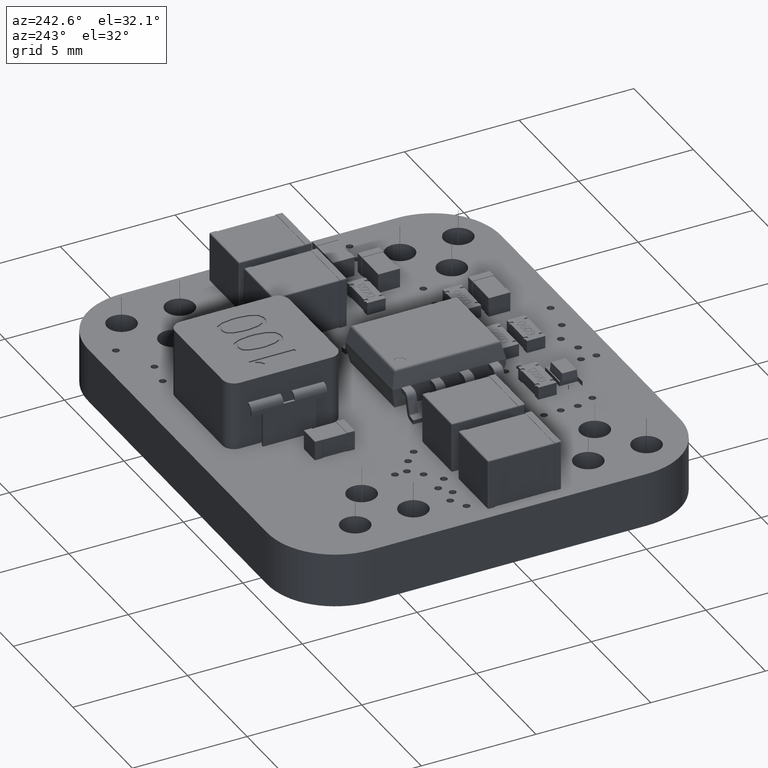
[diagram: clean part render]
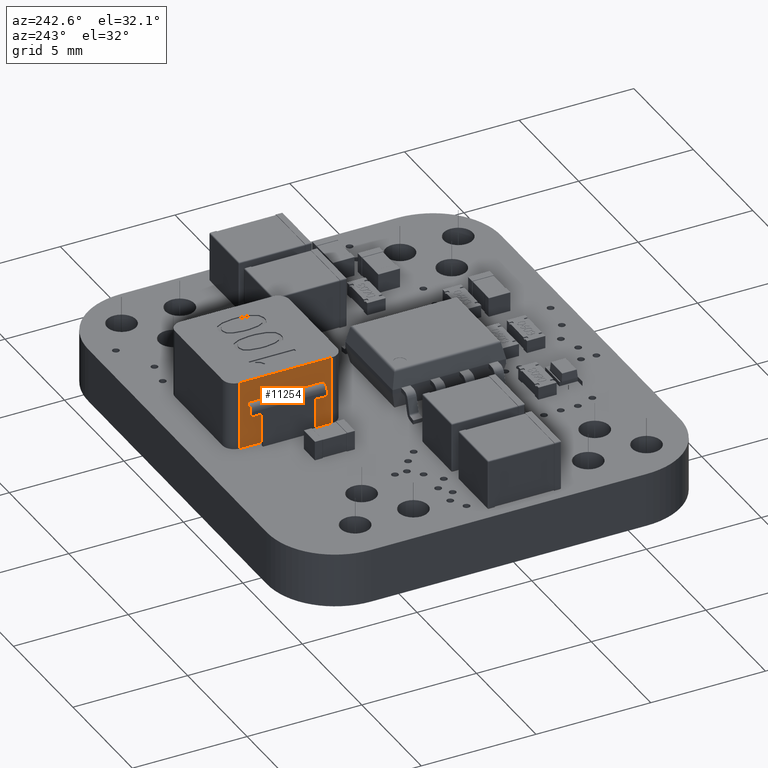
[diagram: same view with one face highlighted and labeled with its STEP entity id]
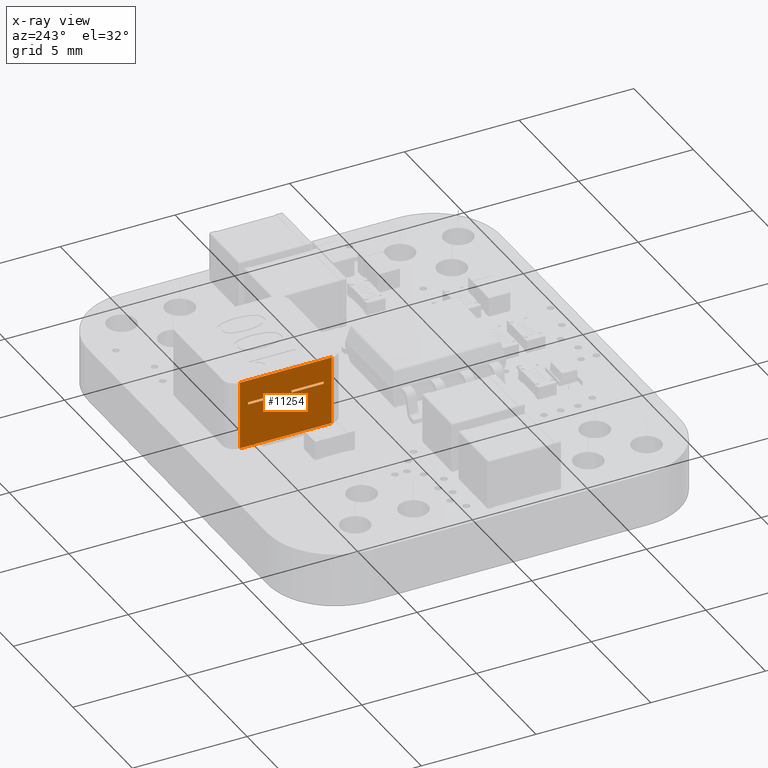
[diagram: x-ray of the same camera — body ghosted, the highlighted face saturated]
A machine part, auxiliary view. The second image highlights one B-rep face of the part: STEP entity #11254.
The next image is the same camera in x-ray: the body ghosted, the highlighted face saturated — about 0% of this face is hidden behind the body in this view.
In plain terms, the highlighted planar face has unit normal (-1, -0, -0).
Its self-contained STEP definition (entity closure, byte-faithful):
#10080 = VERTEX_POINT('',#10081);
#10081 = CARTESIAN_POINT('',(-5.,3.,-4.5));
#10088 = EDGE_CURVE('',#10080,#10089,#10091,.T.);
#10089 = VERTEX_POINT('',#10090);
#10090 = CARTESIAN_POINT('',(-5.,3.,-0.5));
#10091 = LINE('',#10092,#10093);
#10092 = CARTESIAN_POINT('',(-5.,3.,-2.5));
#10093 = VECTOR('',#10094,1.);
#10094 = DIRECTION('',(0.,-0.,1.));
#11254 = ADVANCED_FACE('',(#11255,#11289,#11323),#11364,.T.);
#11255 = FACE_BOUND('',#11256,.T.);
#11256 = EDGE_LOOP('',(#11257,#11267,#11275,#11283));
#11257 = ORIENTED_EDGE('',*,*,#11258,.T.);
#11258 = EDGE_CURVE('',#11259,#11261,#11263,.T.);
#11259 = VERTEX_POINT('',#11260);
#11260 = CARTESIAN_POINT('',(-5.,1.9,-4.15));
#11261 = VERTEX_POINT('',#11262);
#11262 = CARTESIAN_POINT('',(-5.,2.,-4.15));
#11263 = LINE('',#11264,#11265);
#11264 = CARTESIAN_POINT('',(-5.,0.,-4.15));
#11265 = VECTOR('',#11266,1.);
#11266 = DIRECTION('',(0.,1.,-0.));
#11267 = ORIENTED_EDGE('',*,*,#11268,.T.);
#11268 = EDGE_CURVE('',#11261,#11269,#11271,.T.);
#11269 = VERTEX_POINT('',#11270);
#11270 = CARTESIAN_POINT('',(-5.,2.,-2.75));
#11271 = LINE('',#11272,#11273);
#11272 = CARTESIAN_POINT('',(-5.,2.,-4.5));
#11273 = VECTOR('',#11274,1.);
#11274 = DIRECTION('',(8.326672684689E-16,0.,1.));
#11275 = ORIENTED_EDGE('',*,*,#11276,.T.);
#11276 = EDGE_CURVE('',#11269,#11277,#11279,.T.);
#11277 = VERTEX_POINT('',#11278);
#11278 = CARTESIAN_POINT('',(-5.,1.9,-2.75));
#11279 = LINE('',#11280,#11281);
#11280 = CARTESIAN_POINT('',(-5.,0.,-2.75));
#11281 = VECTOR('',#11282,1.);
#11282 = DIRECTION('',(-0.,-1.,0.));
#11283 = ORIENTED_EDGE('',*,*,#11284,.T.);
#11284 = EDGE_CURVE('',#11277,#11259,#11285,.T.);
#11285 = LINE('',#11286,#11287);
#11286 = CARTESIAN_POINT('',(-5.,1.9,-4.5));
#11287 = VECTOR('',#11288,1.);
#11288 = DIRECTION('',(-8.326672684689E-16,-0.,-1.));
#11289 = FACE_BOUND('',#11290,.T.);
#11290 = EDGE_LOOP('',(#11291,#11301,#11309,#11317));
#11291 = ORIENTED_EDGE('',*,*,#11292,.T.);
#11292 = EDGE_CURVE('',#11293,#11295,#11297,.T.);
#11293 = VERTEX_POINT('',#11294);
#11294 = CARTESIAN_POINT('',(-5.,1.9,-0.85));
#11295 = VERTEX_POINT('',#11296);
#11296 = CARTESIAN_POINT('',(-5.,1.9,-2.25));
#11297 = LINE('',#11298,#11299);
#11298 = CARTESIAN_POINT('',(-5.,1.9,-4.5));
#11299 = VECTOR('',#11300,1.);
#11300 = DIRECTION('',(-8.326672684689E-16,-0.,-1.));
#11301 = ORIENTED_EDGE('',*,*,#11302,.T.);
#11302 = EDGE_CURVE('',#11295,#11303,#11305,.T.);
#11303 = VERTEX_POINT('',#11304);
#11304 = CARTESIAN_POINT('',(-5.,2.,-2.25));
#11305 = LINE('',#11306,#11307);
#11306 = CARTESIAN_POINT('',(-5.,0.,-2.25));
#11307 = VECTOR('',#11308,1.);
#11308 = DIRECTION('',(0.,1.,-0.));
#11309 = ORIENTED_EDGE('',*,*,#11310,.T.);
#11310 = EDGE_CURVE('',#11303,#11311,#11313,.T.);
#11311 = VERTEX_POINT('',#11312);
#11312 = CARTESIAN_POINT('',(-5.,2.,-0.85));
#11313 = LINE('',#11314,#11315);
#11314 = CARTESIAN_POINT('',(-5.,2.,-4.5));
#11315 = VECTOR('',#11316,1.);
#11316 = DIRECTION('',(8.326672684689E-16,0.,1.));
#11317 = ORIENTED_EDGE('',*,*,#11318,.T.);
#11318 = EDGE_CURVE('',#11311,#11293,#11319,.T.);
#11319 = LINE('',#11320,#11321);
#11320 = CARTESIAN_POINT('',(-5.,0.,-0.85));
#11321 = VECTOR('',#11322,1.);
#11322 = DIRECTION('',(-0.,-1.,0.));
#11323 = FACE_BOUND('',#11324,.T.);
#11324 = EDGE_LOOP('',(#11325,#11333,#11341,#11349,#11357,#11363));
#11325 = ORIENTED_EDGE('',*,*,#11326,.T.);
#11326 = EDGE_CURVE('',#10080,#11327,#11329,.T.);
#11327 = VERTEX_POINT('',#11328);
#11328 = CARTESIAN_POINT('',(-5.,0.,-4.5));
#11329 = LINE('',#11330,#11331);
#11330 = CARTESIAN_POINT('',(-5.,0.,-4.5));
#11331 = VECTOR('',#11332,1.);
#11332 = DIRECTION('',(-0.,-1.,0.));
#11333 = ORIENTED_EDGE('',*,*,#11334,.T.);
#11334 = EDGE_CURVE('',#11327,#11335,#11337,.T.);
#11335 = VERTEX_POINT('',#11336);
#11336 = CARTESIAN_POINT('',(-5.,0.,-3.65));
#11337 = LINE('',#11338,#11339);
#11338 = CARTESIAN_POINT('',(-5.,0.,-4.5));
#11339 = VECTOR('',#11340,1.);
#11340 = DIRECTION('',(8.326672684689E-16,0.,1.));
#11341 = ORIENTED_EDGE('',*,*,#11342,.T.);
#11342 = EDGE_CURVE('',#11335,#11343,#11345,.T.);
#11343 = VERTEX_POINT('',#11344);
#11344 = CARTESIAN_POINT('',(-5.,0.,-1.35));
#11345 = LINE('',#11346,#11347);
#11346 = CARTESIAN_POINT('',(-5.,0.,-4.5));
#11347 = VECTOR('',#11348,1.);
#11348 = DIRECTION('',(8.326672684689E-16,0.,1.));
#11349 = ORIENTED_EDGE('',*,*,#11350,.T.);
#11350 = EDGE_CURVE('',#11343,#11351,#11353,.T.);
#11351 = VERTEX_POINT('',#11352);
#11352 = CARTESIAN_POINT('',(-5.,0.,-0.5));
#11353 = LINE('',#11354,#11355);
#11354 = CARTESIAN_POINT('',(-5.,0.,-4.5));
#11355 = VECTOR('',#11356,1.);
#11356 = DIRECTION('',(8.326672684689E-16,0.,1.));
#11357 = ORIENTED_EDGE('',*,*,#11358,.T.);
#11358 = EDGE_CURVE('',#11351,#10089,#11359,.T.);
#11359 = LINE('',#11360,#11361);
#11360 = CARTESIAN_POINT('',(-5.,0.,-0.5));
#11361 = VECTOR('',#11362,1.);
#11362 = DIRECTION('',(0.,1.,-0.));
#11363 = ORIENTED_EDGE('',*,*,#10088,.F.);
#11364 = PLANE('',#11365);
#11365 = AXIS2_PLACEMENT_3D('',#11366,#11367,#11368);
#11366 = CARTESIAN_POINT('',(-5.,0.,-4.5));
#11367 = DIRECTION('',(-1.,0.,8.326672684689E-16));
#11368 = DIRECTION('',(8.326672684689E-16,0.,1.));